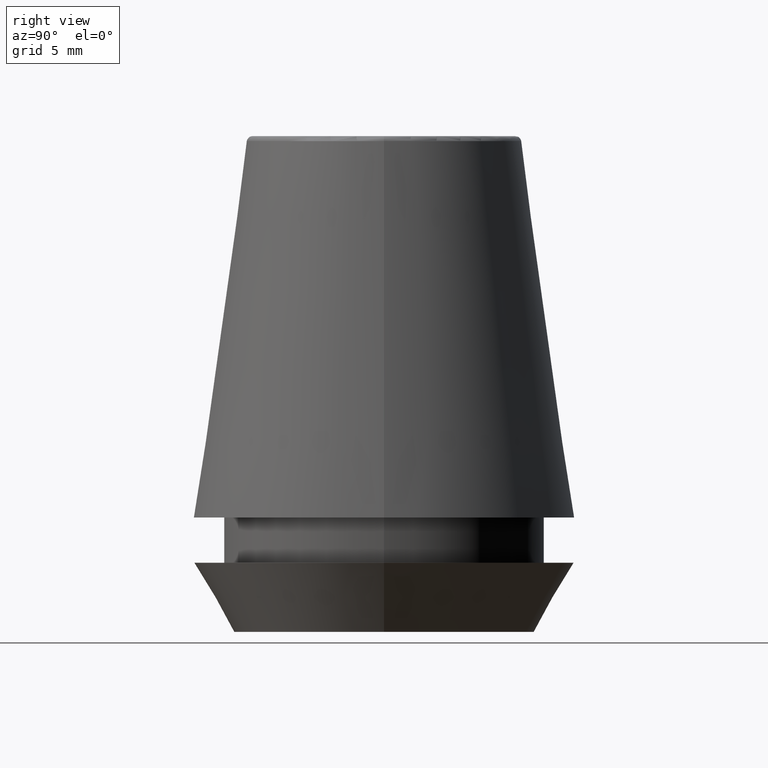
[diagram: clean part render]
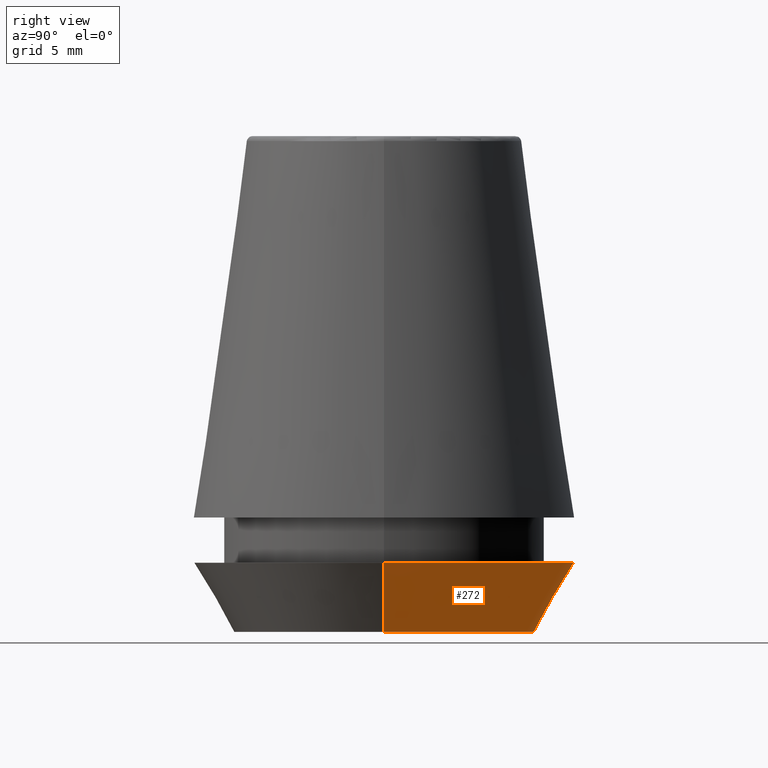
[diagram: same view with one face highlighted and labeled with its STEP entity id]
A machine part, right view. The second image highlights one B-rep face of the part: STEP entity #272.
In plain terms, the highlighted conical surface has half-angle 30 deg.
Its self-contained STEP definition (entity closure, byte-faithful):
#3 = DIRECTION ( 'NONE',  ( -0.0000000000000000000, -0.0000000000000000000, 1.000000000000000000 ) ) ;
#11 = DIRECTION ( 'NONE',  ( -0.4999999999999957800, 6.123233995736714300E-017, 0.8660254037844410400 ) ) ;
#17 = DIRECTION ( 'NONE',  ( 0.4999999999999957800, 0.0000000000000000000, 0.8660254037844410400 ) ) ;
#19 = DIRECTION ( 'NONE',  ( -0.0000000000000000000, -0.0000000000000000000, 1.000000000000000000 ) ) ;
#34 = EDGE_LOOP ( 'NONE', ( #47, #205, #233, #250 ) ) ;
#39 = AXIS2_PLACEMENT_3D ( 'NONE', #360, #3, #94 ) ;
#47 = ORIENTED_EDGE ( 'NONE', *, *, #160, .T. ) ;
#54 = DIRECTION ( 'NONE',  ( 1.000000000000000000, 0.0000000000000000000, 0.0000000000000000000 ) ) ;
#66 = VERTEX_POINT ( 'NONE', #230 ) ;
#70 = EDGE_CURVE ( 'NONE', #66, #274, #267, .T. ) ;
#77 = CIRCLE ( 'NONE', #39, 10.26217568973925200 ) ;
#94 = DIRECTION ( 'NONE',  ( 1.000000000000000000, 0.0000000000000000000, 0.0000000000000000000 ) ) ;
#111 = DIRECTION ( 'NONE',  ( 1.000000000000000000, 0.0000000000000000000, 0.0000000000000000000 ) ) ;
#115 = EDGE_CURVE ( 'NONE', #274, #120, #329, .T. ) ;
#120 = VERTEX_POINT ( 'NONE', #357 ) ;
#151 = CONICAL_SURFACE ( 'NONE', #327, 10.26217568973925200, 0.5235987755982940400 ) ;
#160 = EDGE_CURVE ( 'NONE', #66, #268, #77, .T. ) ;
#164 = VECTOR ( 'NONE', #17, 1000.000000000000200 ) ;
#171 = LINE ( 'NONE', #243, #262 ) ;
#205 = ORIENTED_EDGE ( 'NONE', *, *, #275, .T. ) ;
#224 = CARTESIAN_POINT ( 'NONE',  ( 0.0000000000000000000, 0.0000000000000000000, 0.0000000000000000000 ) ) ;
#229 = CARTESIAN_POINT ( 'NONE',  ( 10.26217568973925200, 0.0000000000000000000, 0.0000000000000000000 ) ) ;
#230 = CARTESIAN_POINT ( 'NONE',  ( 10.26217568973925200, 0.0000000000000000000, 0.0000000000000000000 ) ) ;
#233 = ORIENTED_EDGE ( 'NONE', *, *, #115, .F. ) ;
#241 = CARTESIAN_POINT ( 'NONE',  ( -10.26217568973925200, 1.424397449982127500E-015, 0.0000000000000000000 ) ) ;
#243 = CARTESIAN_POINT ( 'NONE',  ( -10.26217568973925200, 1.256754061072695800E-015, 0.0000000000000000000 ) ) ;
#250 = ORIENTED_EDGE ( 'NONE', *, *, #70, .F. ) ;
#252 = CARTESIAN_POINT ( 'NONE',  ( 13.00000000000000000, 0.0000000000000000000, 4.742050807568884500 ) ) ;
#262 = VECTOR ( 'NONE', #11, 1000.000000000000200 ) ;
#267 = LINE ( 'NONE', #229, #164 ) ;
#268 = VERTEX_POINT ( 'NONE', #241 ) ;
#272 = ADVANCED_FACE ( 'NONE', ( #313 ), #151, .T. ) ;
#274 = VERTEX_POINT ( 'NONE', #252 ) ;
#275 = EDGE_CURVE ( 'NONE', #268, #120, #171, .T. ) ;
#309 = AXIS2_PLACEMENT_3D ( 'NONE', #383, #19, #54 ) ;
#313 = FACE_OUTER_BOUND ( 'NONE', #34, .T. ) ;
#327 = AXIS2_PLACEMENT_3D ( 'NONE', #224, #371, #111 ) ;
#329 = CIRCLE ( 'NONE', #309, 13.00000000000000000 ) ;
#357 = CARTESIAN_POINT ( 'NONE',  ( -13.00000000000000000, 1.592040838891559100E-015, 4.742050807568884500 ) ) ;
#360 = CARTESIAN_POINT ( 'NONE',  ( 0.0000000000000000000, 0.0000000000000000000, 0.0000000000000000000 ) ) ;
#371 = DIRECTION ( 'NONE',  ( -0.0000000000000000000, -0.0000000000000000000, 1.000000000000000000 ) ) ;
#383 = CARTESIAN_POINT ( 'NONE',  ( 0.0000000000000000000, 0.0000000000000000000, 4.742050807568884500 ) ) ;